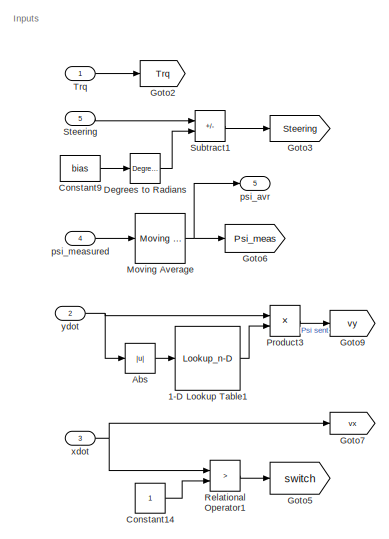
[diagram: root canvas - part 1/3, left side, full height]
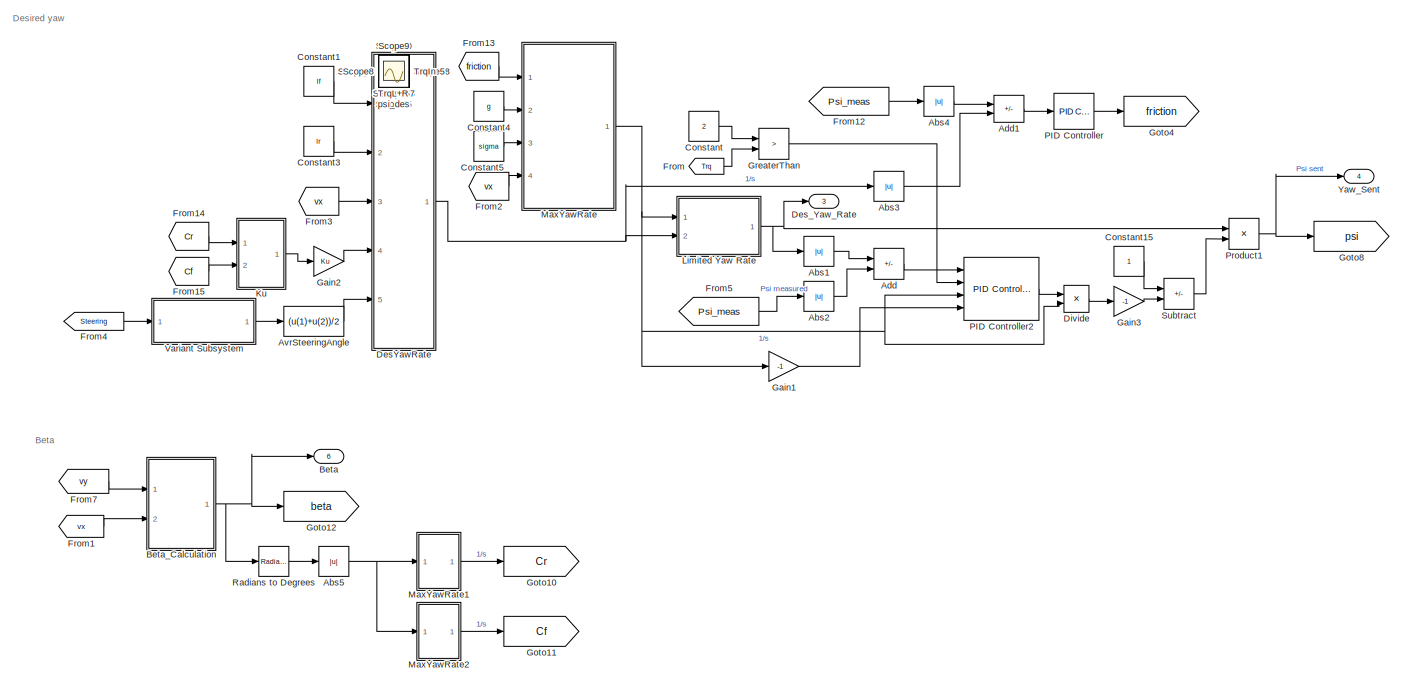
[diagram: root canvas - part 2/3, center side, full height]
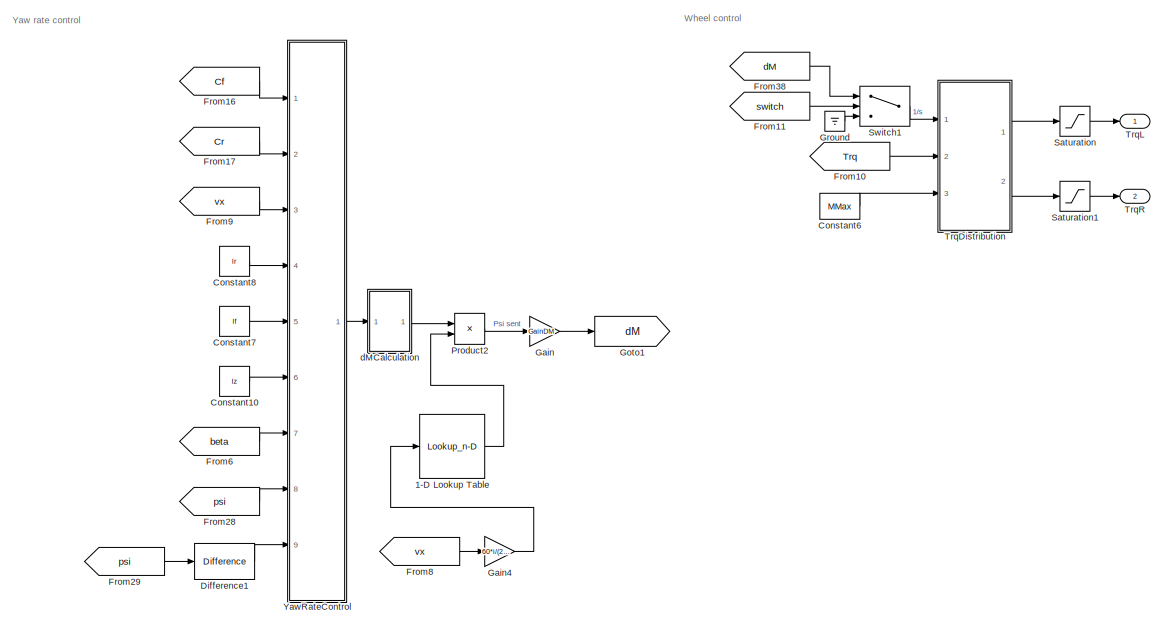
[diagram: root canvas - part 3/3, right side, full height]
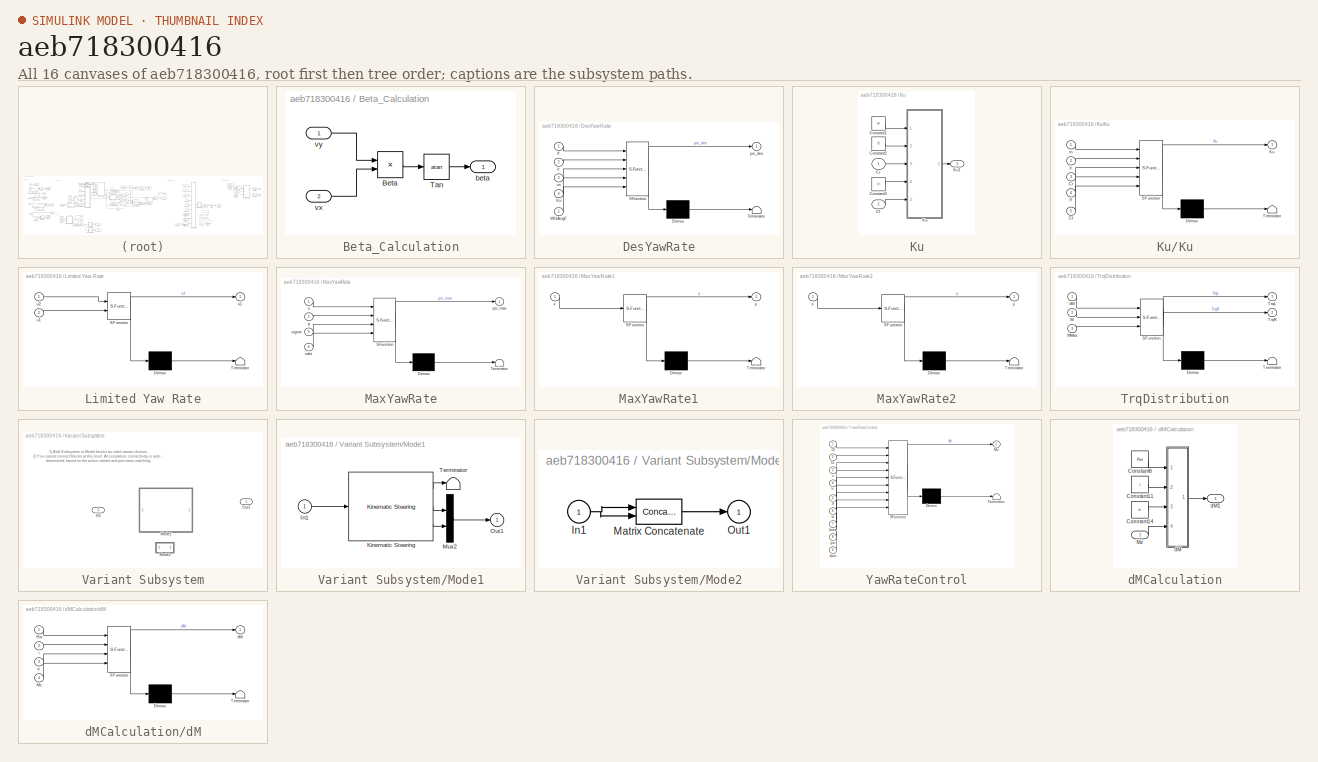
[diagram: thumbnail index - all 16 canvases of the model, root first then tree order]
MODEL slx_aeb718300416
KIND model
CONFIG AbsTol = auto
CONFIG EnableMultiTasking = off
CONFIG FixedStep = auto
CONFIG MaxStep = auto
CONFIG MinStep = auto
CONFIG PreLoadFcn = setUpPurePursuitCurveHighVel
CONFIG RelTol = 1e-3
CONFIG SampleTimeConstraint = Unconstrained
CONFIG SolverName = VariableStepAuto
CONFIG StartTime = 0.0
CONFIG StopTime = Ts
WORKSPACE source: mxarray member
WORKSPACE Cf = 34282
WORKSPACE Cr = 34282
WORKSPACE GainDM: Simulink.Parameter (value not decoded)
WORKSPACE Iz = 162
WORKSPACE Kd: Simulink.Parameter (value not decoded)
WORKSPACE Ki: Simulink.Parameter (value not decoded)
WORKSPACE Kp: Simulink.Parameter (value not decoded)
WORKSPACE Ku: Simulink.Parameter (value not decoded)
WORKSPACE L = 1.524
WORKSPACE MMax: Simulink.Parameter (value not decoded)
WORKSPACE Rw = 0.265
WORKSPACE SR: Simulink.Parameter (value not decoded)
WORKSPACE bias: Simulink.Parameter (value not decoded)
WORKSPACE firstWarning = 0
WORKSPACE g = 9.81
WORKSPACE h = 0.302
WORKSPACE i = 5.45
WORKSPACE lf = 0.686
WORKSPACE lr = 0.838
WORKSPACE m = 300
WORKSPACE originalScenarioChecksum = 'F73A6DA3C723D3CA73A6F931B7A52A9C'
WORKSPACE sigma = 1
WORKSPACE tr = 0.549
WORKSPACE u: Simulink.Parameter (value not decoded)
BLOCK [Lookup_n-D] 1-D Lookup Table
  BreakpointsForDimension1 = [-10000 300 600 10000]
  InputPortMap = u0
  InternalRulePriority = Speed
  NumberOfTableDimensions = 1
  Ports = [1, 1]
  RndMeth = Simplest
  Table = [0 0 1 1]
BLOCK [Lookup_n-D] 1-D Lookup Table1
  BreakpointsForDimension1 = [0 0.1 0.3 100]
  ExtrapMethod = Clip
  InputPortMap = u0
  InternalRulePriority = Speed
  NumberOfTableDimensions = 1
  Ports = [1, 1]
  RndMeth = Simplest
  Table = [0 0 1 1]
  UseLastTableValue = on
BLOCK [Abs] Abs
  SaturateOnIntegerOverflow = off
BLOCK [Abs] Abs1
  SaturateOnIntegerOverflow = off
BLOCK [Abs] Abs2
  SaturateOnIntegerOverflow = off
BLOCK [Abs] Abs3
  SaturateOnIntegerOverflow = off
BLOCK [Abs] Abs4
  SaturateOnIntegerOverflow = off
BLOCK [Abs] Abs5
  SaturateOnIntegerOverflow = off
BLOCK [Sum] Add
  IconShape = rectangular
  Inputs = +-
  Ports = [2, 1]
BLOCK [Sum] Add1
  IconShape = rectangular
  Inputs = +-
  Ports = [2, 1]
BLOCK [Fcn] AvrSteeringAngle
  Expr = (u(1)+u(2))/2
BLOCK [Outport] Beta
  Port = 6
BLOCK [SubSystem] Beta_Calculation
  Ports = [2, 1]
  RequestExecContextInheritance = off
BLOCK [Product] Beta_Calculation/Beta
  Inputs = */
  Ports = [2, 1]
BLOCK [Trigonometry] Beta_Calculation/Tan
  Operator = atan
  Ports = [1, 1]
BLOCK [Outport] Beta_Calculation/beta
BLOCK [Inport] Beta_Calculation/vx
  Port = 2
BLOCK [Inport] Beta_Calculation/vy
BLOCK [Constant] Constant
  Value = 2
BLOCK [Constant] Constant1
  Value = lf
BLOCK [Constant] Constant10
  Value = Iz
BLOCK [Constant] Constant14
BLOCK [Constant] Constant15
BLOCK [Constant] Constant3
  Value = lr
BLOCK [Constant] Constant4
  Value = g
BLOCK [Constant] Constant5
  Value = sigma
BLOCK [Constant] Constant6
  Value = MMax
BLOCK [Constant] Constant7
  Value = lf
BLOCK [Constant] Constant8
  Value = lr
BLOCK [Constant] Constant9
  Value = bias
BLOCK [Reference] Degrees to Radians  REF=simulink_extras/Transformations/Degrees to
Radians
  Ports = [1, 1]
  SourceBlock = simulink_extras/Transformations/Degrees to\nRadians
  SourceProductBaseCode = SL
  SourceType = DegreesToRadians
BLOCK [Scope] DeltaM
  Floating = off
  IOType = viewer
  NumInputPorts = 1
  Ports = []
  ScopeSpecificationString = Simulink.scopes.TimeScopeBlockCfg('CurrentConfiguration', extmgr.ConfigurationSet(extmgr.Configuration('Core','General UI',true),extmgr.Configuration('Core','Source UI',true),extmgr.Configuration('Sources','WiredSimulink',true,'DataLoggingVariableName','ScopeData1'),extmgr.Configuration('Visuals','Time Domain',true,'SerializedDisplays',{struct('MinYLimReal','-311.65049','MaxYLimReal','325.01546','...<+1386ch>
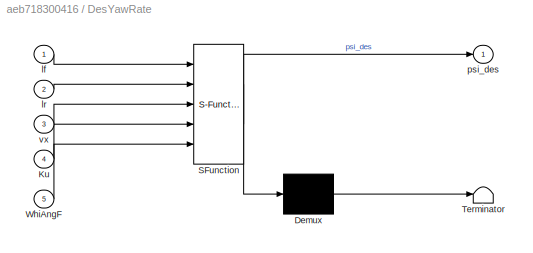
BLOCK [SubSystem] DesYawRate
  ErrorFcn = Stateflow.Translate.translate
  PermitHierarchicalResolution = ExplicitOnly
  Ports = [5, 1]
  RequestExecContextInheritance = off
  SFBlockType = MATLAB Function
  TreatAsAtomicUnit = on
BLOCK [Demux] DesYawRate/ Demux 
  Outputs = 1
  Ports = [1, 1]
BLOCK [S-Function] DesYawRate/ SFunction 
  EnableBusSupport = on
  FunctionName = sf_sfun
  PortCounts = [5 2]
  Ports = [5, 2]
  SFcnIsStateOwnerBlock = off
  SFunctionDeploymentMode = off
  Tag = Stateflow S-Function 6
BLOCK [Terminator] DesYawRate/ Terminator 
BLOCK [Inport] DesYawRate/Ku
  Port = 4
BLOCK [Inport] DesYawRate/WhiAngF
  Port = 5
BLOCK [Inport] DesYawRate/lf
BLOCK [Inport] DesYawRate/lr
  Port = 2
BLOCK [Outport] DesYawRate/psi_des
BLOCK [Inport] DesYawRate/vx
  Port = 3
BLOCK [Outport] Des_Yaw_Rate
  Port = 3
BLOCK [Reference] Difference1  REF=simulink/Discrete/Difference
  Ports = [1, 1]
  SourceBlock = simulink/Discrete/Difference
  SourceProductBaseCode = SL
  SourceType = Difference
BLOCK [Product] Divide
  Inputs = */
  Ports = [2, 1]
BLOCK [From] From
  GotoTag = Trq
BLOCK [From] From1
  GotoTag = vx
BLOCK [From] From10
  GotoTag = Trq
BLOCK [From] From11
  GotoTag = switch
BLOCK [From] From12
  GotoTag = Psi_meas
BLOCK [From] From13
  GotoTag = friction
BLOCK [From] From14
  GotoTag = Cr
BLOCK [From] From15
  GotoTag = Cf
BLOCK [From] From16
  GotoTag = Cf
BLOCK [From] From17
  GotoTag = Cr
BLOCK [From] From2
  GotoTag = vx
BLOCK [From] From28
  GotoTag = psi
BLOCK [From] From29
  GotoTag = psi
BLOCK [From] From3
  GotoTag = vx
BLOCK [From] From38
  GotoTag = dM
BLOCK [From] From4
  GotoTag = Steering
BLOCK [From] From5
  GotoTag = Psi_meas
BLOCK [From] From6
  GotoTag = beta
BLOCK [From] From7
  GotoTag = vy
BLOCK [From] From8
  GotoTag = vx
BLOCK [From] From9
  GotoTag = vx
BLOCK [Gain] Gain
  Gain = GainDM
BLOCK [Gain] Gain1
  Gain = -1
BLOCK [Gain] Gain2
  Gain = Ku
BLOCK [Gain] Gain3
  Gain = -1
BLOCK [Gain] Gain4
  Gain = 60*i/(2*pi*Rw)
BLOCK [Goto] Goto1
  GotoTag = dM
BLOCK [Goto] Goto10
  GotoTag = Cr
BLOCK [Goto] Goto11
  GotoTag = Cf
BLOCK [Goto] Goto12
  GotoTag = beta
BLOCK [Goto] Goto2
  GotoTag = Trq
BLOCK [Goto] Goto3
  GotoTag = Steering
BLOCK [Goto] Goto4
  GotoTag = friction
BLOCK [Goto] Goto5
  GotoTag = switch
BLOCK [Goto] Goto6
  GotoTag = Psi_meas
BLOCK [Goto] Goto7
  GotoTag = vx
BLOCK [Goto] Goto8
  GotoTag = psi
BLOCK [Goto] Goto9
  GotoTag = vy
BLOCK [RelationalOperator] GreaterThan
  InputSameDT = off
  Operator = >
  OutDataTypeStr = boolean
  Ports = [2, 1]
  RndMeth = Simplest
BLOCK [Ground] Ground
BLOCK [SubSystem] Ku
  Ports = [2, 1]
  RequestExecContextInheritance = off
BLOCK [Inport] Ku/Cf
  Port = 2
BLOCK [Constant] Ku/Constant1
  Value = m
BLOCK [Constant] Ku/Constant2
  Value = lf
BLOCK [Constant] Ku/Constant3
  Value = lr
BLOCK [Inport] Ku/Cr
BLOCK [SubSystem] Ku/Ku
  ErrorFcn = Stateflow.Translate.translate
  PermitHierarchicalResolution = ExplicitOnly
  Ports = [5, 1]
  RequestExecContextInheritance = off
  SFBlockType = MATLAB Function
  TreatAsAtomicUnit = on
BLOCK [Demux] Ku/Ku/ Demux 
  Outputs = 1
  Ports = [1, 1]
BLOCK [S-Function] Ku/Ku/ SFunction 
  EnableBusSupport = on
  FunctionName = sf_sfun
  PortCounts = [5 2]
  Ports = [5, 2]
  SFcnIsStateOwnerBlock = off
  SFunctionDeploymentMode = off
  Tag = Stateflow S-Function 2
BLOCK [Terminator] Ku/Ku/ Terminator 
BLOCK [Inport] Ku/Ku/Cf
  Port = 5
BLOCK [Inport] Ku/Ku/Cr
  Port = 3
BLOCK [Outport] Ku/Ku/Ku
BLOCK [Inport] Ku/Ku/lf
  Port = 4
BLOCK [Inport] Ku/Ku/lr
  Port = 2
BLOCK [Inport] Ku/Ku/m
BLOCK [Outport] Ku/Ku1
BLOCK [SubSystem] Limited Yaw Rate
  ErrorFcn = Stateflow.Translate.translate
  PermitHierarchicalResolution = ExplicitOnly
  Ports = [2, 1]
  RequestExecContextInheritance = off
  SFBlockType = MATLAB Function
  TreatAsAtomicUnit = on
BLOCK [Demux] Limited Yaw Rate/ Demux 
  Outputs = 1
  Ports = [1, 1]
BLOCK [S-Function] Limited Yaw Rate/ SFunction 
  EnableBusSupport = on
  FunctionName = sf_sfun
  PortCounts = [2 2]
  Ports = [2, 2]
  SFcnIsStateOwnerBlock = off
  SFunctionDeploymentMode = off
  Tag = Stateflow S-Function 1
BLOCK [Terminator] Limited Yaw Rate/ Terminator 
BLOCK [Outport] Limited Yaw Rate/u1
BLOCK [Inport] Limited Yaw Rate/u1 
  Port = 2
BLOCK [Inport] Limited Yaw Rate/u2
BLOCK [SubSystem] MaxYawRate
  ErrorFcn = Stateflow.Translate.translate
  PermitHierarchicalResolution = ExplicitOnly
  Ports = [4, 1]
  RequestExecContextInheritance = off
  SFBlockType = MATLAB Function
  TreatAsAtomicUnit = on
BLOCK [Demux] MaxYawRate/ Demux 
  Outputs = 1
  Ports = [1, 1]
BLOCK [S-Function] MaxYawRate/ SFunction 
  EnableBusSupport = on
  FunctionName = sf_sfun
  PortCounts = [4 2]
  Ports = [4, 2]
  SFcnIsStateOwnerBlock = off
  SFunctionDeploymentMode = off
  Tag = Stateflow S-Function 4
BLOCK [Terminator] MaxYawRate/ Terminator 
BLOCK [Inport] MaxYawRate/g
  Port = 2
BLOCK [Outport] MaxYawRate/psi_max
BLOCK [Inport] MaxYawRate/sigma
  Port = 3
BLOCK [Inport] MaxYawRate/u
BLOCK [Inport] MaxYawRate/xdot
  Port = 4
BLOCK [SubSystem] MaxYawRate1
  ErrorFcn = Stateflow.Translate.translate
  PermitHierarchicalResolution = ExplicitOnly
  Ports = [1, 1]
  RequestExecContextInheritance = off
  SFBlockType = MATLAB Function
  TreatAsAtomicUnit = on
BLOCK [Demux] MaxYawRate1/ Demux 
  Outputs = 1
  Ports = [1, 1]
BLOCK [S-Function] MaxYawRate1/ SFunction 
  EnableBusSupport = on
  FunctionName = sf_sfun
  PortCounts = [1 2]
  Ports = [1, 2]
  SFcnIsStateOwnerBlock = off
  SFunctionDeploymentMode = off
  Tag = Stateflow S-Function 5
BLOCK [Terminator] MaxYawRate1/ Terminator 
BLOCK [Inport] MaxYawRate1/x
BLOCK [Outport] MaxYawRate1/y
BLOCK [SubSystem] MaxYawRate2
  ErrorFcn = Stateflow.Translate.translate
  PermitHierarchicalResolution = ExplicitOnly
  Ports = [1, 1]
  RequestExecContextInheritance = off
  SFBlockType = MATLAB Function
  TreatAsAtomicUnit = on
BLOCK [Demux] MaxYawRate2/ Demux 
  Outputs = 1
  Ports = [1, 1]
BLOCK [S-Function] MaxYawRate2/ SFunction 
  EnableBusSupport = on
  FunctionName = sf_sfun
  PortCounts = [1 2]
  Ports = [1, 2]
  SFcnIsStateOwnerBlock = off
  SFunctionDeploymentMode = off
  Tag = Stateflow S-Function 8
BLOCK [Terminator] MaxYawRate2/ Terminator 
BLOCK [Inport] MaxYawRate2/x
BLOCK [Outport] MaxYawRate2/y
BLOCK [Reference] Moving Average  REF=dspstat3/Moving
Average
  Ports = [1, 1]
  SourceBlock = dspstat3/Moving\nAverage
  SourceProductBaseCode = DS
  SourceType = dsp.simulink.MovingAverage
BLOCK [Reference] PID Controller  REF=slpidlib/PID Controller
  Ports = [1, 1]
  SourceBlock = slpidlib/PID Controller
  SourceProductBaseCode = SL
  SourceType = PID 1dof
BLOCK [Reference] PID Controller2  REF=slpidlib/PID Controller
  Ports = [4, 1]
  SourceBlock = slpidlib/PID Controller
  SourceProductBaseCode = SL
  SourceType = PID 1dof
BLOCK [Product] Product1
  Ports = [2, 1]
BLOCK [Product] Product2
  Ports = [2, 1]
BLOCK [Product] Product3
  Ports = [2, 1]
BLOCK [Reference] Radians to Degrees  REF=simulink_extras/Transformations/Radians
to Degrees
  Ports = [1, 1]
  SourceBlock = simulink_extras/Transformations/Radians\nto Degrees
  SourceProductBaseCode = SL
  SourceType = RadiansToDegrees
BLOCK [RelationalOperator] Relational Operator1
  InputSameDT = off
  Operator = >
  OutDataTypeStr = boolean
  Ports = [2, 1]
  RndMeth = Simplest
BLOCK [Saturate] Saturation
  LowerLimit = -MMax
  UpperLimit = MMax
BLOCK [Saturate] Saturation1
  LowerLimit = -MMax
  UpperLimit = MMax
BLOCK [Scope] Scope
  Floating = off
  IOType = viewer
  NumInputPorts = 1
  Ports = []
  ScopeSpecificationString = Simulink.scopes.TimeScopeBlockCfg('CurrentConfiguration', extmgr.ConfigurationSet(extmgr.Configuration('Core','General UI',true),extmgr.Configuration('Core','Source UI',true),extmgr.Configuration('Sources','WiredSimulink',true,'DataLoggingVariableName','ScopeData1'),extmgr.Configuration('Visuals','Time Domain',true,'SerializedDisplays',{struct('MinYLimReal','-0.45261','MaxYLimReal','0.30077','YLab...<+1367ch>
BLOCK [Scope] Scope1
  Floating = off
  IOType = viewer
  NumInputPorts = 1
  Ports = []
  ScopeSpecificationString = Simulink.scopes.TimeScopeBlockCfg('CurrentConfiguration', extmgr.ConfigurationSet(extmgr.Configuration('Core','General UI',true),extmgr.Configuration('Core','Source UI',true),extmgr.Configuration('Sources','WiredSimulink',true,'DataLoggingVariableName','ScopeData3'),extmgr.Configuration('Visuals','Time Domain',true,'SerializedDisplays',{struct('MinYLimReal','-1.47476','MaxYLimReal','1.76043','YLab...<+1363ch>
BLOCK [Scope] Scope10
  Floating = off
  IOType = viewer
  NumInputPorts = 1
  Ports = []
  ScopeSpecificationString = Simulink.scopes.TimeScopeBlockCfg('CurrentConfiguration', extmgr.ConfigurationSet(extmgr.Configuration('Core','General UI',true),extmgr.Configuration('Core','Source UI',true),extmgr.Configuration('Sources','WiredSimulink',true,'DataLoggingVariableName','ScopeData1'),extmgr.Configuration('Visuals','Time Domain',true,'SerializedDisplays',{struct('MinYLimReal','-0.20015','MaxYLimReal','0.27431','YLab...<+1359ch>
BLOCK [Scope] Scope11
  Floating = off
  IOType = viewer
  NumInputPorts = 1
  Ports = []
  ScopeSpecificationString = Simulink.scopes.TimeScopeBlockCfg('CurrentConfiguration', extmgr.ConfigurationSet(extmgr.Configuration('Core','General UI',true),extmgr.Configuration('Core','Source UI',true),extmgr.Configuration('Sources','WiredSimulink',true,'DataLoggingVariableName','ScopeData1'),extmgr.Configuration('Visuals','Time Domain',true,'SerializedDisplays',{struct('MinYLimReal','-2.18801','MaxYLimReal','22.21249','YLa...<+1363ch>
BLOCK [Scope] Scope12
  Floating = off
  IOType = viewer
  NumInputPorts = 1
  Ports = []
  ScopeSpecificationString = Simulink.scopes.TimeScopeBlockCfg('CurrentConfiguration', extmgr.ConfigurationSet(extmgr.Configuration('Core','General UI',true),extmgr.Configuration('Core','Source UI',true),extmgr.Configuration('Sources','WiredSimulink',true,'DataLoggingVariableName','ScopeData2'),extmgr.Configuration('Visuals','Time Domain',true,'SerializedDisplays',{struct('MinYLimReal','-807528890353908056064.00000','MaxYLimR...<+1594ch>
BLOCK [Scope] Scope13
  Floating = off
  IOType = viewer
  NumInputPorts = 1
  Ports = []
  ScopeSpecificationString = Simulink.scopes.TimeScopeBlockCfg('CurrentConfiguration', extmgr.ConfigurationSet(extmgr.Configuration('Core','General UI',true),extmgr.Configuration('Core','Source UI',true),extmgr.Configuration('Sources','WiredSimulink',true,'DataLoggingVariableName','ScopeData3'),extmgr.Configuration('Visuals','Time Domain',true,'SerializedDisplays',{struct('MinYLimReal','-0.71654','MaxYLimReal','10.22713','YLa...<+1417ch>
BLOCK [Scope] Scope14
  Floating = off
  IOType = viewer
  NumInputPorts = 1
  Ports = []
  ScopeSpecificationString = Simulink.scopes.TimeScopeBlockCfg('CurrentConfiguration', extmgr.ConfigurationSet(extmgr.Configuration('Core','General UI',true),extmgr.Configuration('Core','Source UI',true),extmgr.Configuration('Sources','WiredSimulink',true,'DataLoggingVariableName','ScopeData1'),extmgr.Configuration('Visuals','Time Domain',true,'SerializedDisplays',{struct('MinYLimReal','-1.00000','MaxYLimReal','1.00000','YLab...<+1359ch>
BLOCK [Scope] Scope15
  Floating = off
  IOType = viewer
  NumInputPorts = 1
  Ports = []
  ScopeSpecificationString = Simulink.scopes.TimeScopeBlockCfg('CurrentConfiguration', extmgr.ConfigurationSet(extmgr.Configuration('Core','General UI',true),extmgr.Configuration('Core','Source UI',true),extmgr.Configuration('Sources','WiredSimulink',true,'DataLoggingVariableName','ScopeData1'),extmgr.Configuration('Visuals','Time Domain',true,'SerializedDisplays',{struct('MinYLimReal','-551.93378','MaxYLimReal','439.07101','...<+1371ch>
BLOCK [Scope] Scope16
  Floating = off
  IOType = viewer
  NumInputPorts = 1
  Ports = []
  ScopeSpecificationString = Simulink.scopes.TimeScopeBlockCfg('CurrentConfiguration', extmgr.ConfigurationSet(extmgr.Configuration('Core','General UI',true),extmgr.Configuration('Core','Source UI',true),extmgr.Configuration('Sources','WiredSimulink',true,'DataLoggingVariableName','ScopeData2'),extmgr.Configuration('Visuals','Time Domain',true,'SerializedDisplays',{struct('MinYLimReal','-2.76926','MaxYLimReal','1.94539','YLab...<+1371ch>
BLOCK [Scope] Scope17
  Floating = off
  IOType = viewer
  NumInputPorts = 1
  Ports = []
  ScopeSpecificationString = Simulink.scopes.TimeScopeBlockCfg('CurrentConfiguration', extmgr.ConfigurationSet(extmgr.Configuration('Core','General UI',true),extmgr.Configuration('Core','Source UI',true),extmgr.Configuration('Sources','WiredSimulink',true,'DataLoggingVariableName','ScopeData2'),extmgr.Configuration('Visuals','Time Domain',true,'SerializedDisplays',{struct('MinYLimReal','-3.65774','MaxYLimReal','2.08515','YLab...<+1409ch>
BLOCK [Scope] Scope18
  Floating = off
  IOType = viewer
  NumInputPorts = 1
  Ports = []
  ScopeSpecificationString = Simulink.scopes.TimeScopeBlockCfg('CurrentConfiguration', extmgr.ConfigurationSet(extmgr.Configuration('Core','General UI',true),extmgr.Configuration('Core','Source UI',true),extmgr.Configuration('Sources','WiredSimulink',true,'DataLoggingVariableName','ScopeData3'),extmgr.Configuration('Visuals','Time Domain',true,'SerializedDisplays',{struct('MinYLimReal','-88.5625','MaxYLimReal','797.0625','YLa...<+1366ch>
BLOCK [Scope] Scope19
  Floating = off
  IOType = viewer
  NumInputPorts = 1
  Ports = []
  ScopeSpecificationString = Simulink.scopes.TimeScopeBlockCfg('CurrentConfiguration', extmgr.ConfigurationSet(extmgr.Configuration('Core','General UI',true),extmgr.Configuration('Core','Source UI',true),extmgr.Configuration('Sources','WiredSimulink',true,'DataLoggingVariableName','ScopeData4'),extmgr.Configuration('Visuals','Time Domain',true,'SerializedDisplays',{struct('MinYLimReal','-2.46885','MaxYLimReal','22.21969','YLa...<+1363ch>
BLOCK [Scope] Scope2
  Floating = off
  IOType = viewer
  NumInputPorts = 1
  Ports = []
  ScopeSpecificationString = Simulink.scopes.TimeScopeBlockCfg('CurrentConfiguration', extmgr.ConfigurationSet(extmgr.Configuration('Core','General UI',true),extmgr.Configuration('Core','Source UI',true),extmgr.Configuration('Sources','WiredSimulink',true,'DataLoggingVariableName','ScopeData1'),extmgr.Configuration('Visuals','Time Domain',true,'SerializedDisplays',{struct('MinYLimReal','-0.125','MaxYLimReal','1.125','YLabelRe...<+1358ch>
BLOCK [Scope] Scope20
  Floating = off
  IOType = viewer
  NumInputPorts = 1
  Ports = []
  ScopeSpecificationString = Simulink.scopes.TimeScopeBlockCfg('CurrentConfiguration', extmgr.ConfigurationSet(extmgr.Configuration('Core','General UI',true),extmgr.Configuration('Core','Source UI',true),extmgr.Configuration('Sources','WiredSimulink',true,'DataLoggingVariableName','ScopeData1'),extmgr.Configuration('Visuals','Time Domain',true,'SerializedDisplays',{struct('MinYLimReal','-0.00001','MaxYLimReal','0.0009','YLabe...<+1357ch>
BLOCK [Scope] Scope21
  Floating = off
  IOType = viewer
  NumInputPorts = 1
  Ports = []
  ScopeSpecificationString = Simulink.scopes.TimeScopeBlockCfg('CurrentConfiguration', extmgr.ConfigurationSet(extmgr.Configuration('Core','General UI',true),extmgr.Configuration('Core','Source UI',true),extmgr.Configuration('Sources','WiredSimulink',true,'DataLoggingVariableName','ScopeData1'),extmgr.Configuration('Visuals','Time Domain',true,'SerializedDisplays',{struct('MinYLimReal','-1.37894','MaxYLimReal','12.6612','YLab...<+1363ch>
BLOCK [Scope] Scope22
  Floating = off
  IOType = viewer
  NumInputPorts = 1
  Ports = []
  ScopeSpecificationString = Simulink.scopes.TimeScopeBlockCfg('CurrentConfiguration', extmgr.ConfigurationSet(extmgr.Configuration('Core','General UI',true),extmgr.Configuration('Core','Source UI',true),extmgr.Configuration('Sources','WiredSimulink',true,'DataLoggingVariableName','ScopeData2'),extmgr.Configuration('Visuals','Time Domain',true,'SerializedDisplays',{struct('MinYLimReal','-1.70077','MaxYLimReal','1.74332','YLab...<+1425ch>
BLOCK [Scope] Scope23
  Floating = off
  IOType = viewer
  NumInputPorts = 1
  Ports = []
  ScopeSpecificationString = Simulink.scopes.TimeScopeBlockCfg('CurrentConfiguration', extmgr.ConfigurationSet(extmgr.Configuration('Core','General UI',true),extmgr.Configuration('Core','Source UI',true),extmgr.Configuration('Sources','WiredSimulink',true,'DataLoggingVariableName','ScopeData3'),extmgr.Configuration('Visuals','Time Domain',true,'SerializedDisplays',{struct('MinYLimReal','-1.15211','MaxYLimReal','1.10184','YLab...<+1362ch>
BLOCK [Scope] Scope24
  Floating = off
  IOType = viewer
  NumInputPorts = 1
  Ports = []
  ScopeSpecificationString = Simulink.scopes.TimeScopeBlockCfg('CurrentConfiguration', extmgr.ConfigurationSet(extmgr.Configuration('Core','General UI',true),extmgr.Configuration('Core','Source UI',true),extmgr.Configuration('Sources','WiredSimulink',true,'DataLoggingVariableName','ScopeData2'),extmgr.Configuration('Visuals','Time Domain',true,'SerializedDisplays',{struct('MinYLimReal','0.19611','MaxYLimReal','1.93942','YLabe...<+1365ch>
BLOCK [Scope] Scope25
  Floating = off
  IOType = viewer
  NumInputPorts = 1
  Ports = []
  ScopeSpecificationString = Simulink.scopes.TimeScopeBlockCfg('CurrentConfiguration', extmgr.ConfigurationSet(extmgr.Configuration('Core','General UI',true),extmgr.Configuration('Core','Source UI',true),extmgr.Configuration('Sources','WiredSimulink',true,'DataLoggingVariableName','ScopeData3'),extmgr.Configuration('Visuals','Time Domain',true,'SerializedDisplays',{struct('MinYLimReal','-0.80389','MaxYLimReal','0.93942','YLab...<+1365ch>
BLOCK [Scope] Scope26
  Floating = off
  IOType = viewer
  NumInputPorts = 1
  Ports = []
  ScopeSpecificationString = Simulink.scopes.TimeScopeBlockCfg('CurrentConfiguration', extmgr.ConfigurationSet(extmgr.Configuration('Core','General UI',true),extmgr.Configuration('Core','Source UI',true),extmgr.Configuration('Sources','WiredSimulink',true,'DataLoggingVariableName','ScopeData4'),extmgr.Configuration('Visuals','Time Domain',true,'SerializedDisplays',{struct('MinYLimReal','-0.9231','MaxYLimReal','0.88058','YLabe...<+1370ch>
BLOCK [Scope] Scope27
  Floating = off
  IOType = viewer
  NumInputPorts = 1
  Ports = []
  ScopeSpecificationString = Simulink.scopes.TimeScopeBlockCfg('CurrentConfiguration', extmgr.ConfigurationSet(extmgr.Configuration('Core','General UI',true),extmgr.Configuration('Core','Source UI',true),extmgr.Configuration('Sources','WiredSimulink',true,'DataLoggingVariableName','ScopeData5'),extmgr.Configuration('Visuals','Time Domain',true,'SerializedDisplays',{struct('MinYLimReal','-3.41284','MaxYLimReal','2.05903','YLab...<+1475ch>
BLOCK [Scope] Scope28
  Floating = off
  IOType = viewer
  NumInputPorts = 1
  Ports = []
  ScopeSpecificationString = Simulink.scopes.TimeScopeBlockCfg('CurrentConfiguration', extmgr.ConfigurationSet(extmgr.Configuration('Core','General UI',true),extmgr.Configuration('Core','Source UI',true),extmgr.Configuration('Sources','WiredSimulink',true,'DataLoggingVariableName','ScopeData1'),extmgr.Configuration('Visuals','Time Domain',true,'SerializedDisplays',{struct('MinYLimReal','-270.81211','MaxYLimReal','2486.54743',...<+1382ch>
BLOCK [Scope] Scope29
  Floating = off
  IOType = viewer
  NumInputPorts = 1
  Ports = []
  ScopeSpecificationString = Simulink.scopes.TimeScopeBlockCfg('CurrentConfiguration', extmgr.ConfigurationSet(extmgr.Configuration('Core','General UI',true),extmgr.Configuration('Core','Source UI',true),extmgr.Configuration('Sources','WiredSimulink',true,'DataLoggingVariableName','ScopeData1'),extmgr.Configuration('Visuals','Time Domain',true,'SerializedDisplays',{struct('MinYLimReal','-0.93942','MaxYLimReal','0.80389','YLab...<+1364ch>
BLOCK [Scope] Scope3
  Floating = off
  IOType = viewer
  NumInputPorts = 1
  Ports = []
  ScopeSpecificationString = Simulink.scopes.TimeScopeBlockCfg('CurrentConfiguration', extmgr.ConfigurationSet(extmgr.Configuration('Core','General UI',true),extmgr.Configuration('Core','Source UI',true),extmgr.Configuration('Sources','WiredSimulink',true,'DataLoggingVariableName','ScopeData2'),extmgr.Configuration('Visuals','Time Domain',true,'SerializedDisplays',{struct('MinYLimReal','-7037.53858','MaxYLimReal','7339.33971'...<+1395ch>
BLOCK [Scope] Scope30
  Floating = off
  IOType = viewer
  NumInputPorts = 1
  Ports = []
  ScopeSpecificationString = Simulink.scopes.TimeScopeBlockCfg('CurrentConfiguration', extmgr.ConfigurationSet(extmgr.Configuration('Core','General UI',true),extmgr.Configuration('Core','Source UI',true),extmgr.Configuration('Sources','WiredSimulink',true,'DataLoggingVariableName','ScopeData4'),extmgr.Configuration('Visuals','Time Domain',true,'SerializedDisplays',{struct('MinYLimReal','-1.47476','MaxYLimReal','1.76043','YLab...<+1367ch>
BLOCK [Scope] Scope31
  Floating = off
  IOType = viewer
  NumInputPorts = 1
  Ports = []
  ScopeSpecificationString = Simulink.scopes.TimeScopeBlockCfg('CurrentConfiguration', extmgr.ConfigurationSet(extmgr.Configuration('Core','General UI',true),extmgr.Configuration('Core','Source UI',true),extmgr.Configuration('Sources','WiredSimulink',true,'DataLoggingVariableName','ScopeData5'),extmgr.Configuration('Visuals','Time Domain',true,'SerializedDisplays',{struct('MinYLimReal','-10.00000','MaxYLimReal','10.00000','YL...<+1365ch>
BLOCK [Scope] Scope32
  Floating = off
  IOType = viewer
  NumInputPorts = 1
  Ports = []
  ScopeSpecificationString = Simulink.scopes.TimeScopeBlockCfg('CurrentConfiguration', extmgr.ConfigurationSet(extmgr.Configuration('Core','General UI',true),extmgr.Configuration('Core','Source UI',true),extmgr.Configuration('Sources','WiredSimulink',true,'DataLoggingVariableName','ScopeData6'),extmgr.Configuration('Visuals','Time Domain',true,'SerializedDisplays',{struct('MinYLimReal','-0.10938','MaxYLimReal','0.08918','YLab...<+1359ch>
BLOCK [Scope] Scope33
  Floating = off
  IOType = viewer
  NumInputPorts = 1
  Ports = []
  ScopeSpecificationString = Simulink.scopes.TimeScopeBlockCfg('CurrentConfiguration', extmgr.ConfigurationSet(extmgr.Configuration('Core','General UI',true),extmgr.Configuration('Core','Source UI',true),extmgr.Configuration('Sources','WiredSimulink',true,'DataLoggingVariableName','ScopeData1'),extmgr.Configuration('Visuals','Time Domain',true,'SerializedDisplays',{struct('MinYLimReal','0.91926','MaxYLimReal','2.12008','YLabe...<+1357ch>
BLOCK [Scope] Scope34
  Floating = off
  IOType = viewer
  NumInputPorts = 1
  Ports = []
  ScopeSpecificationString = Simulink.scopes.TimeScopeBlockCfg('CurrentConfiguration', extmgr.ConfigurationSet(extmgr.Configuration('Core','General UI',true),extmgr.Configuration('Core','Source UI',true),extmgr.Configuration('Sources','WiredSimulink',true,'DataLoggingVariableName','ScopeData2'),extmgr.Configuration('Visuals','Time Domain',true,'SerializedDisplays',{struct('MinYLimReal','-1.54366','MaxYLimReal','1.10704','YLab...<+1394ch>
BLOCK [Scope] Scope35
  Floating = off
  IOType = viewer
  NumInputPorts = 1
  Ports = []
  ScopeSpecificationString = Simulink.scopes.TimeScopeBlockCfg('CurrentConfiguration', extmgr.ConfigurationSet(extmgr.Configuration('Core','General UI',true),extmgr.Configuration('Core','Source UI',true),extmgr.Configuration('Sources','WiredSimulink',true,'DataLoggingVariableName','ScopeData1'),extmgr.Configuration('Visuals','Time Domain',true,'SerializedDisplays',{struct('MinYLimReal','-0.13648','MaxYLimReal','0.17545','YLab...<+1375ch>
BLOCK [Scope] Scope36
  Floating = off
  IOType = viewer
  NumInputPorts = 1
  Ports = []
  ScopeSpecificationString = Simulink.scopes.TimeScopeBlockCfg('CurrentConfiguration', extmgr.ConfigurationSet(extmgr.Configuration('Core','General UI',true),extmgr.Configuration('Core','Source UI',true),extmgr.Configuration('Sources','WiredSimulink',true,'DataLoggingVariableName','ScopeData2'),extmgr.Configuration('Visuals','Time Domain',true,'SerializedDisplays',{struct('MinYLimReal','-94246.43872','MaxYLimReal','-8038.9342...<+1387ch>
BLOCK [Scope] Scope37
  Floating = off
  IOType = viewer
  NumInputPorts = 1
  Ports = []
  ScopeSpecificationString = Simulink.scopes.TimeScopeBlockCfg('CurrentConfiguration', extmgr.ConfigurationSet(extmgr.Configuration('Core','General UI',true),extmgr.Configuration('Core','Source UI',true),extmgr.Configuration('Sources','WiredSimulink',true,'DataLoggingVariableName','ScopeData3'),extmgr.Configuration('Visuals','Time Domain',true,'SerializedDisplays',{struct('MinYLimReal','14780.89326','MaxYLimReal','42897.67853...<+1392ch>
BLOCK [Scope] Scope38
  Floating = off
  IOType = viewer
  NumInputPorts = 1
  Ports = []
  ScopeSpecificationString = Simulink.scopes.TimeScopeBlockCfg('CurrentConfiguration', extmgr.ConfigurationSet(extmgr.Configuration('Core','General UI',true),extmgr.Configuration('Core','Source UI',true),extmgr.Configuration('Sources','WiredSimulink',true,'DataLoggingVariableName','ScopeData4'),extmgr.Configuration('Visuals','Time Domain',true,'SerializedDisplays',{struct('MinYLimReal','-1.03317','MaxYLimReal','9.29856','YLab...<+1363ch>
BLOCK [Scope] Scope39
  Floating = off
  IOType = viewer
  NumInputPorts = 1
  Ports = []
  ScopeSpecificationString = Simulink.scopes.TimeScopeBlockCfg('CurrentConfiguration', extmgr.ConfigurationSet(extmgr.Configuration('Core','General UI',true),extmgr.Configuration('Core','Source UI',true),extmgr.Configuration('Sources','WiredSimulink',true,'DataLoggingVariableName','ScopeData5'),extmgr.Configuration('Visuals','Time Domain',true,'SerializedDisplays',{struct('MinYLimReal','10335.55011','MaxYLimReal','34190.49443...<+1392ch>
BLOCK [Scope] Scope4
  Floating = off
  IOType = viewer
  NumInputPorts = 1
  Ports = []
  ScopeSpecificationString = Simulink.scopes.TimeScopeBlockCfg('CurrentConfiguration', extmgr.ConfigurationSet(extmgr.Configuration('Core','General UI',true),extmgr.Configuration('Core','Source UI',true),extmgr.Configuration('Sources','WiredSimulink',true,'DataLoggingVariableName','ScopeData4'),extmgr.Configuration('Visuals','Time Domain',true,'SerializedDisplays',{struct('MinYLimReal','-1.15211','MaxYLimReal','1.10184','YLab...<+1385ch>
BLOCK [Scope] Scope40
  Floating = off
  IOType = viewer
  NumInputPorts = 1
  Ports = []
  ScopeSpecificationString = Simulink.scopes.TimeScopeBlockCfg('CurrentConfiguration', extmgr.ConfigurationSet(extmgr.Configuration('Core','General UI',true),extmgr.Configuration('Core','Source UI',true),extmgr.Configuration('Sources','WiredSimulink',true,'DataLoggingVariableName','ScopeData1'),extmgr.Configuration('Visuals','Time Domain',true,'SerializedDisplays',{struct('MinYLimReal','0.83177','MaxYLimReal','2.1298','YLabel...<+1367ch>
BLOCK [Scope] Scope5
  Floating = off
  IOType = viewer
  NumInputPorts = 1
  Ports = []
  ScopeSpecificationString = Simulink.scopes.TimeScopeBlockCfg('CurrentConfiguration', extmgr.ConfigurationSet(extmgr.Configuration('Core','General UI',true),extmgr.Configuration('Core','Source UI',true),extmgr.Configuration('Sources','WiredSimulink',true,'DataLoggingVariableName','ScopeData1'),extmgr.Configuration('Visuals','Time Domain',true,'SerializedDisplays',{struct('MinYLimReal','-1.72906','MaxYLimReal','1.74748','YLab...<+1386ch>
BLOCK [Scope] Scope6
  Floating = off
  IOType = viewer
  NumInputPorts = 1
  Ports = []
  ScopeSpecificationString = Simulink.scopes.TimeScopeBlockCfg('CurrentConfiguration', extmgr.ConfigurationSet(extmgr.Configuration('Core','General UI',true),extmgr.Configuration('Core','Source UI',true),extmgr.Configuration('Sources','WiredSimulink',true,'DataLoggingVariableName','ScopeData1'),extmgr.Configuration('Visuals','Time Domain',true,'SerializedDisplays',{struct('MinYLimReal','-1.6969','MaxYLimReal','15.27212','YLab...<+1408ch>
BLOCK [Scope] Scope7
  Floating = off
  IOType = viewer
  NumInputPorts = 1
  Ports = []
  ScopeSpecificationString = Simulink.scopes.TimeScopeBlockCfg('CurrentConfiguration', extmgr.ConfigurationSet(extmgr.Configuration('Core','General UI',true),extmgr.Configuration('Core','Source UI',true),extmgr.Configuration('Sources','WiredSimulink',true,'DataLoggingVariableName','ScopeData3'),extmgr.Configuration('Visuals','Time Domain',true,'SerializedDisplays',{struct('MinYLimReal','-0.96992','MaxYLimReal','1.04464','YLab...<+1359ch>
BLOCK [Scope] Scope8
  Floating = off
  IOType = viewer
  NumInputPorts = 1
  Ports = []
  ScopeSpecificationString = Simulink.scopes.TimeScopeBlockCfg('CurrentConfiguration', extmgr.ConfigurationSet(extmgr.Configuration('Core','General UI',true),extmgr.Configuration('Core','Source UI',true),extmgr.Configuration('Sources','WiredSimulink',true,'DataLoggingVariableName','ScopeData2'),extmgr.Configuration('Visuals','Time Domain',true,'SerializedDisplays',{struct('MinYLimReal','-2.77223','MaxYLimReal','1.94706','YLab...<+1369ch>
BLOCK [Scope] Scope9
  Floating = off
  IOType = viewer
  NumInputPorts = 1
  Ports = []
  ScopeSpecificationString = Simulink.scopes.TimeScopeBlockCfg('CurrentConfiguration', extmgr.ConfigurationSet(extmgr.Configuration('Core','General UI',true),extmgr.Configuration('Core','Source UI',true),extmgr.Configuration('Sources','WiredSimulink',true,'DataLoggingVariableName','ScopeData3'),extmgr.Configuration('Visuals','Time Domain',true,'SerializedDisplays',{struct('MinYLimReal','-3.00071','MaxYLimReal','3.20506','YLab...<+1446ch>
BLOCK [Inport] Steering
  OutDataTypeStr = double
  Port = 5
  PortDimensions = [1 1]
  SamplingMode = Sample based
  SignalType = real
BLOCK [Sum] Subtract
  IconShape = rectangular
  Inputs = +-
  Ports = [2, 1]
BLOCK [Sum] Subtract1
  IconShape = rectangular
  Inputs = +-
  Ports = [2, 1]
BLOCK [Switch] Switch1
  Criteria = u2 > Threshold
  InputSameDT = off
  SaturateOnIntegerOverflow = off
BLOCK [Inport] Trq
  OutDataTypeStr = double
  SamplingMode = Sample based
  SignalType = real
BLOCK [SubSystem] TrqDistribution
  ErrorFcn = Stateflow.Translate.translate
  PermitHierarchicalResolution = ExplicitOnly
  Ports = [3, 2]
  RequestExecContextInheritance = off
  SFBlockType = MATLAB Function
  TreatAsAtomicUnit = on
BLOCK [Demux] TrqDistribution/ Demux 
  Outputs = 1
  Ports = [1, 1]
BLOCK [S-Function] TrqDistribution/ SFunction 
  EnableBusSupport = on
  FunctionName = sf_sfun
  PortCounts = [3 3]
  Ports = [3, 3]
  SFcnIsStateOwnerBlock = off
  SFunctionDeploymentMode = off
  Tag = Stateflow S-Function 9
BLOCK [Terminator] TrqDistribution/ Terminator 
BLOCK [Inport] TrqDistribution/M
  Port = 2
BLOCK [Inport] TrqDistribution/MMax
  Port = 3
BLOCK [Outport] TrqDistribution/TrqL
BLOCK [Outport] TrqDistribution/TrqR
  Port = 2
BLOCK [Inport] TrqDistribution/dM
BLOCK [Scope] TrqIn
  Floating = off
  IOType = viewer
  NumInputPorts = 1
  Ports = []
  ScopeSpecificationString = Simulink.scopes.TimeScopeBlockCfg('CurrentConfiguration', extmgr.ConfigurationSet(extmgr.Configuration('Core','General UI',true),extmgr.Configuration('Core','Source UI',true),extmgr.Configuration('Sources','WiredSimulink',true),extmgr.Configuration('Visuals','Time Domain',true,'SerializedDisplays',{struct('MinYLimReal','-88.5625','MaxYLimReal','797.0625','YLabelReal','','MinYLimMag','0.00000','Max...<+1327ch>
BLOCK [Outport] TrqL
BLOCK [Scope] TrqL+R
  Floating = off
  IOType = viewer
  NumInputPorts = 1
  Ports = []
  ScopeSpecificationString = Simulink.scopes.TimeScopeBlockCfg('CurrentConfiguration', extmgr.ConfigurationSet(extmgr.Configuration('Core','General UI',true),extmgr.Configuration('Core','Source UI',true),extmgr.Configuration('Sources','WiredSimulink',true,'DataLoggingVariableName','ScopeData1'),extmgr.Configuration('Visuals','Time Domain',true,'SerializedDisplays',{struct('MinYLimReal','-527.19233','MaxYLimReal','452.18804','...<+1493ch>
BLOCK [Outport] TrqR
  Port = 2
BLOCK [SubSystem] Variant Subsystem
  Ports = [1, 1]
  RequestExecContextInheritance = off
  Variant = on
BLOCK [Inport] Variant Subsystem/In1
BLOCK [SubSystem] Variant Subsystem/Mode1
  Ports = [1, 1]
  RequestExecContextInheritance = off
  VariantControl = MODE1
BLOCK [Inport] Variant Subsystem/Mode1/In1
BLOCK [Reference] Variant Subsystem/Mode1/Kinematic Steering  REF=vehdynlibsteering/Kinematic Steering
  Ports = [1, 3]
  SourceBlock = vehdynlibsteering/Kinematic Steering
  SourceProductBaseCode = VE
  SourceType = Kinematic Steering
BLOCK [Mux] Variant Subsystem/Mode1/Mux2
  DisplayOption = bar
  Inputs = 2
  Ports = [2, 1]
BLOCK [Outport] Variant Subsystem/Mode1/Out1
BLOCK [Terminator] Variant Subsystem/Mode1/Terminator
BLOCK [SubSystem] Variant Subsystem/Mode2
  Ports = [1, 1]
  RequestExecContextInheritance = off
  VariantControl = MODE2
BLOCK [Inport] Variant Subsystem/Mode2/In1
BLOCK [Concatenate] Variant Subsystem/Mode2/Matrix Concatenate
  Ports = [2, 1]
BLOCK [Outport] Variant Subsystem/Mode2/Out1
BLOCK [Outport] Variant Subsystem/Out1
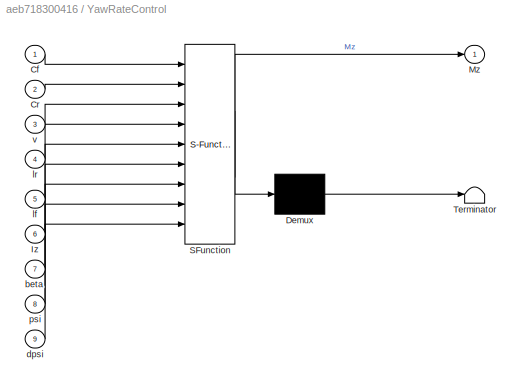
BLOCK [SubSystem] YawRateControl
  ErrorFcn = Stateflow.Translate.translate
  PermitHierarchicalResolution = ExplicitOnly
  Ports = [9, 1]
  RequestExecContextInheritance = off
  SFBlockType = MATLAB Function
  TreatAsAtomicUnit = on
BLOCK [Demux] YawRateControl/ Demux 
  Outputs = 1
  Ports = [1, 1]
BLOCK [S-Function] YawRateControl/ SFunction 
  EnableBusSupport = on
  FunctionName = sf_sfun
  PortCounts = [9 2]
  Ports = [9, 2]
  SFcnIsStateOwnerBlock = off
  SFunctionDeploymentMode = off
  Tag = Stateflow S-Function 3
BLOCK [Terminator] YawRateControl/ Terminator 
BLOCK [Inport] YawRateControl/Cf
BLOCK [Inport] YawRateControl/Cr
  Port = 2
BLOCK [Inport] YawRateControl/Iz
  Port = 6
BLOCK [Outport] YawRateControl/Mz
BLOCK [Inport] YawRateControl/beta
  Port = 7
BLOCK [Inport] YawRateControl/dpsi
  Port = 9
BLOCK [Inport] YawRateControl/lf
  Port = 5
BLOCK [Inport] YawRateControl/lr
  Port = 4
BLOCK [Inport] YawRateControl/psi
  Port = 8
BLOCK [Inport] YawRateControl/v
  Port = 3
BLOCK [Outport] Yaw_Sent
  Port = 4
BLOCK [SubSystem] dMCalculation
  Ports = [1, 1]
  RequestExecContextInheritance = off
BLOCK [Constant] dMCalculation/Constant11
  Value = i
BLOCK [Constant] dMCalculation/Constant14
  Value = tr
BLOCK [Constant] dMCalculation/Constant6
  Value = Rw
BLOCK [Inport] dMCalculation/Mz
BLOCK [SubSystem] dMCalculation/dM
  ErrorFcn = Stateflow.Translate.translate
  PermitHierarchicalResolution = ExplicitOnly
  Ports = [4, 1]
  RequestExecContextInheritance = off
  SFBlockType = MATLAB Function
  TreatAsAtomicUnit = on
BLOCK [Demux] dMCalculation/dM/ Demux 
  Outputs = 1
  Ports = [1, 1]
BLOCK [S-Function] dMCalculation/dM/ SFunction 
  EnableBusSupport = on
  FunctionName = sf_sfun
  PortCounts = [4 2]
  Ports = [4, 2]
  SFcnIsStateOwnerBlock = off
  SFunctionDeploymentMode = off
  Tag = Stateflow S-Function 7
BLOCK [Terminator] dMCalculation/dM/ Terminator 
BLOCK [Inport] dMCalculation/dM/Mz
  Port = 4
BLOCK [Inport] dMCalculation/dM/Rw
BLOCK [Outport] dMCalculation/dM/dM
BLOCK [Inport] dMCalculation/dM/i
  Port = 2
BLOCK [Inport] dMCalculation/dM/tr
  Port = 3
BLOCK [Outport] dMCalculation/dM1
BLOCK [Outport] psi_avr
  Port = 5
BLOCK [Scope] psi_des
  Floating = off
  IOType = viewer
  NumInputPorts = 1
  Ports = []
  ScopeSpecificationString = Simulink.scopes.TimeScopeBlockCfg('CurrentConfiguration', extmgr.ConfigurationSet(extmgr.Configuration('Core','General UI',true),extmgr.Configuration('Core','Source UI',true),extmgr.Configuration('Sources','WiredSimulink',true,'DataLoggingVariableName','ScopeData2'),extmgr.Configuration('Visuals','Time Domain',true,'SerializedDisplays',{struct('MinYLimReal','-6.80739','MaxYLimReal','2.68999','YLab...<+1437ch>
BLOCK [Inport] psi_measured
  OutDataTypeStr = double
  Port = 4
  PortDimensions = 1
  SamplingMode = Sample based
  SignalType = real
BLOCK [Inport] xdot
  OutDataTypeStr = double
  Port = 3
  PortDimensions = 1
  SamplingMode = Sample based
  SignalType = real
BLOCK [Inport] ydot
  OutDataTypeStr = double
  Port = 2
  PortDimensions = 1
  SamplingMode = Sample based
  SignalType = real
ANNOTATION (root): Beta
ANNOTATION (root): Desired yaw
ANNOTATION (root): Inputs
ANNOTATION (root): Wheel control
ANNOTATION (root): Yaw rate control
ANNOTATION Variant Subsystem: 1) Add Subsystem or Model blocks as valid variant choices. 2) You cannot connect blocks at this level. At simulation, connectivity is automatically determined, based on the active variant and port name matching.
LINE 1-D Lookup Table1:1 -> Product3:2
LINE 1-D Lookup Table:1 -> Product2:2
LINE Abs1:1 -> Add:1
LINE Abs2:1 -> Add:2
LINE Abs3:1 -> Add1:2
LINE Abs4:1 -> Add1:1
NET Abs5:1 -> MaxYawRate1:1, MaxYawRate2:1
LINE Abs:1 -> 1-D Lookup Table1:1
LINE Add1:1 -> PID Controller:1
LINE Add:1 -> PID Controller2:1
LINE AvrSteeringAngle:1 -> DesYawRate:5
LINE Beta_Calculation/Beta:1 -> Beta_Calculation/Tan:1
LINE Beta_Calculation/Tan:1 -> Beta_Calculation/beta:1
LINE Beta_Calculation/vx:1 -> Beta_Calculation/Beta:2
LINE Beta_Calculation/vy:1 -> Beta_Calculation/Beta:1
NET Beta_Calculation:1 -> Beta:1, Goto12:1, Radians to Degrees:1
LINE Constant10:1 -> YawRateControl:6
LINE Constant14:1 -> Relational Operator1:2
LINE Constant15:1 -> Subtract:1
LINE Constant1:1 -> DesYawRate:1
LINE Constant3:1 -> DesYawRate:2
LINE Constant4:1 -> MaxYawRate:2
LINE Constant5:1 -> MaxYawRate:3
LINE Constant6:1 -> TrqDistribution:3
LINE Constant7:1 -> YawRateControl:5
LINE Constant8:1 -> YawRateControl:4
LINE Constant9:1 -> Degrees to Radians:1
LINE Constant:1 -> GreaterThan:1
LINE Degrees to Radians:1 -> Subtract1:2
NET DesYawRate:1 -> Abs3:1, Limited Yaw Rate:2
LINE Difference1:1 -> YawRateControl:9
LINE Divide:1 -> Gain3:1
LINE From10:1 -> TrqDistribution:2
LINE From11:1 -> Switch1:2
LINE From12:1 -> Abs4:1
LINE From13:1 -> MaxYawRate:1
LINE From14:1 -> Ku:1
LINE From15:1 -> Ku:2
LINE From16:1 -> YawRateControl:1
LINE From17:1 -> YawRateControl:2
LINE From1:1 -> Beta_Calculation:2
LINE From28:1 -> YawRateControl:8
LINE From29:1 -> Difference1:1
LINE From2:1 -> MaxYawRate:4
LINE From38:1 -> Switch1:1
LINE From3:1 -> DesYawRate:3
LINE From4:1 -> Variant Subsystem:1
LINE From5:1 -> Abs2:1
LINE From6:1 -> YawRateControl:7
LINE From7:1 -> Beta_Calculation:1
LINE From8:1 -> Gain4:1
LINE From9:1 -> YawRateControl:3
LINE From:1 -> GreaterThan:2
LINE Gain1:1 -> PID Controller2:4
LINE Gain2:1 -> DesYawRate:4
LINE Gain3:1 -> Subtract:2
LINE Gain4:1 -> 1-D Lookup Table:1
LINE Gain:1 -> Goto1:1
LINE GreaterThan:1 -> PID Controller2:2
LINE Ground:1 -> Switch1:3
LINE Ku/Cf:1 -> Ku/Ku:5
LINE Ku/Constant1:1 -> Ku/Ku:1
LINE Ku/Constant2:1 -> Ku/Ku:2
LINE Ku/Constant3:1 -> Ku/Ku:4
LINE Ku/Cr:1 -> Ku/Ku:3
LINE Ku/Ku:1 -> Ku/Ku1:1
LINE Ku:1 -> Gain2:1
NET Limited Yaw Rate:1 -> Abs1:1, Des_Yaw_Rate:1, Product1:1
LINE MaxYawRate1:1 -> Goto10:1
LINE MaxYawRate2:1 -> Goto11:1
NET MaxYawRate:1 -> Divide:2, Gain1:1, Limited Yaw Rate:1, PID Controller2:3
NET Moving Average:1 -> Goto6:1, psi_avr:1
LINE PID Controller2:1 -> Divide:1
LINE PID Controller:1 -> Goto4:1
NET Product1:1 -> Goto8:1, Yaw_Sent:1
LINE Product2:1 -> Gain:1
LINE Product3:1 -> Goto9:1
LINE Radians to Degrees:1 -> Abs5:1
LINE Relational Operator1:1 -> Goto5:1
LINE Saturation1:1 -> TrqR:1
LINE Saturation:1 -> TrqL:1
LINE Steering:1 -> Subtract1:1
LINE Subtract1:1 -> Goto3:1
LINE Subtract:1 -> Product1:2
LINE Switch1:1 -> TrqDistribution:1
LINE Trq:1 -> Goto2:1
LINE TrqDistribution:1 -> Saturation:1
LINE TrqDistribution:2 -> Saturation1:1
LINE Variant Subsystem/Mode1/In1:1 -> Variant Subsystem/Mode1/Kinematic Steering:1
LINE Variant Subsystem/Mode1/Kinematic Steering:1 -> Variant Subsystem/Mode1/Terminator:1
LINE Variant Subsystem/Mode1/Kinematic Steering:2 -> Variant Subsystem/Mode1/Mux2:1
LINE Variant Subsystem/Mode1/Kinematic Steering:3 -> Variant Subsystem/Mode1/Mux2:2
LINE Variant Subsystem/Mode1/Mux2:1 -> Variant Subsystem/Mode1/Out1:1
NET Variant Subsystem/Mode2/In1:1 -> Variant Subsystem/Mode2/Matrix Concatenate:1, Variant Subsystem/Mode2/Matrix Concatenate:2
LINE Variant Subsystem/Mode2/Matrix Concatenate:1 -> Variant Subsystem/Mode2/Out1:1
LINE Variant Subsystem:1 -> AvrSteeringAngle:1
LINE YawRateControl:1 -> dMCalculation:1
LINE dMCalculation/Constant11:1 -> dMCalculation/dM:2
LINE dMCalculation/Constant14:1 -> dMCalculation/dM:3
LINE dMCalculation/Constant6:1 -> dMCalculation/dM:1
LINE dMCalculation/Mz:1 -> dMCalculation/dM:4
LINE dMCalculation/dM:1 -> dMCalculation/dM1:1
LINE dMCalculation:1 -> Product2:1
LINE psi_measured:1 -> Moving Average:1
NET xdot:1 -> Goto7:1, Relational Operator1:1
NET ydot:1 -> Abs:1, Product3:1
note: NET lines group one-source signal fan-out (src -> all destinations, sorted); 1:1 wires keep LINE
CHART TrqDistribution states=1 transitions=1
  STATE_LABEL 'eML_blk_kernel()'
  STATE_LABEL 'SCRIPT:\nfunction [TrqL,TrqR] = fcn(dM,M,MMax)\n%#codegen\n\nif M<=0 \n   TrqL = 0;\n   TrqR = 0;\nelse\n   TrqL = M/2 + dM/2;\n   TrqR = M/2 - dM/2;\nend\n\nif TrqR >= MMax\n    TrqR = MMax;\n    TrqL = MMax - abs(dM);\nend\n\nif TrqL >= MMax\n    TrqL = MMax;\n    TrqR = MMax - abs(dM);\nend'
CHART Limited Yaw Rate states=1 transitions=1
  STATE_LABEL 'eML_blk_kernel()'
  STATE_LABEL 'SCRIPT:\nfunction u1 = fcn(u2, u1)\n%#codegen\n\nif u1>=0\n   u1 = min (u1, u2) ;  \n   \nelse\n    u1 = max (u1, -u2) ;\nend\n'
CHART Ku/Ku states=1 transitions=1
  STATE_LABEL 'eML_blk_kernel()'
  STATE_LABEL 'SCRIPT:\nfunction Ku = fcn(m, lr, Cr, lf, Cf)\n%#codegen\n\nKu = (lr*m)/((lf+lr)^2 *Cf)-(lf*m)/((lf+lr)^2 *Cr);'
CHART YawRateControl states=1 transitions=1
  STATE_LABEL 'eML_blk_kernel()'
  STATE_LABEL 'SCRIPT:\nfunction Mz = fcn(Cf, Cr, v, lr, lf, Iz, beta, psi, dpsi)\n\nMz = Iz * dpsi + (Cf*lf - Cr*lr)* beta + 1/v*(lf^2*Cf + lr^2*Cr)*psi;'
CHART MaxYawRate states=1 transitions=1
  STATE_LABEL 'eML_blk_kernel()'
  STATE_LABEL 'SCRIPT:\nfunction psi_max = fcn(u, g, sigma, xdot)\n%#codegen\nrampStart = 0.1;\nrampFull = 1;\n\nk = 1 / (rampFull - rampStart);\nramp = k * (xdot - rampStart);\nif ramp > 1\n    ramp = 1;\nelseif ramp < 0\n    ramp = 0;\nend\n\nif xdot >= rampStart\n    psi_max = ramp * sigma * g * u / xdot;\nelse \n    psi_max = 0;\nend\n'
CHART MaxYawRate1 states=1 transitions=1
  STATE_LABEL 'eML_blk_kernel()'
  STATE_LABEL 'SCRIPT:\nfunction y = fcn(x)\n%#codegen\ny = -2721.4*x + 40086\n'
CHART DesYawRate states=1 transitions=1
  STATE_LABEL 'eML_blk_kernel()'
  STATE_LABEL 'SCRIPT:\nfunction psi_des = fcn( lf, lr , vx, Ku, WhiAngF)\n%#codegen\n\n\npsi_des = vx/((lf + lr) + Ku * vx^2) * WhiAngF;'
CHART dMCalculation/dM states=1 transitions=1
  STATE_LABEL 'eML_blk_kernel()'
  STATE_LABEL 'SCRIPT:\nfunction dM = fcn( Rw, i, tr, Mz)\n%#codegen\n\ndM = Mz * Rw / (2 * i * tr);'
CHART MaxYawRate2 states=1 transitions=1
  STATE_LABEL 'eML_blk_kernel()'
  STATE_LABEL 'SCRIPT:\nfunction y = fcn(x)\n%#codegen\ny = -2308.9*x + 31805\n'
CHART  states=0 transitions=0
CHART  states=0 transitions=0
CHART  states=0 transitions=0
CHART  states=0 transitions=0
CHART  states=0 transitions=0
CHART  states=0 transitions=0
CHART  states=0 transitions=0
CHART  states=0 transitions=0
CHART  states=0 transitions=0
